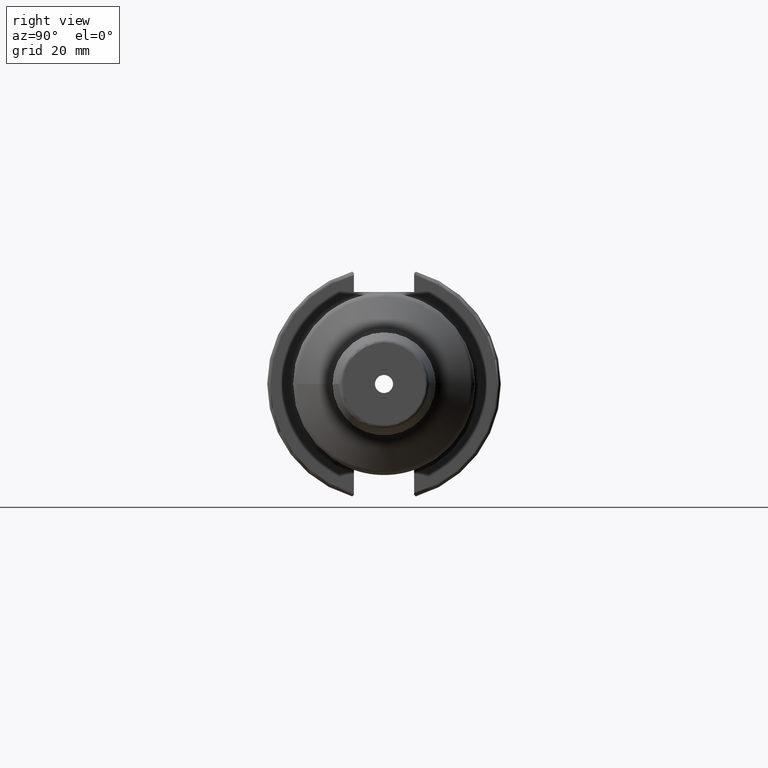
[diagram: clean part render]
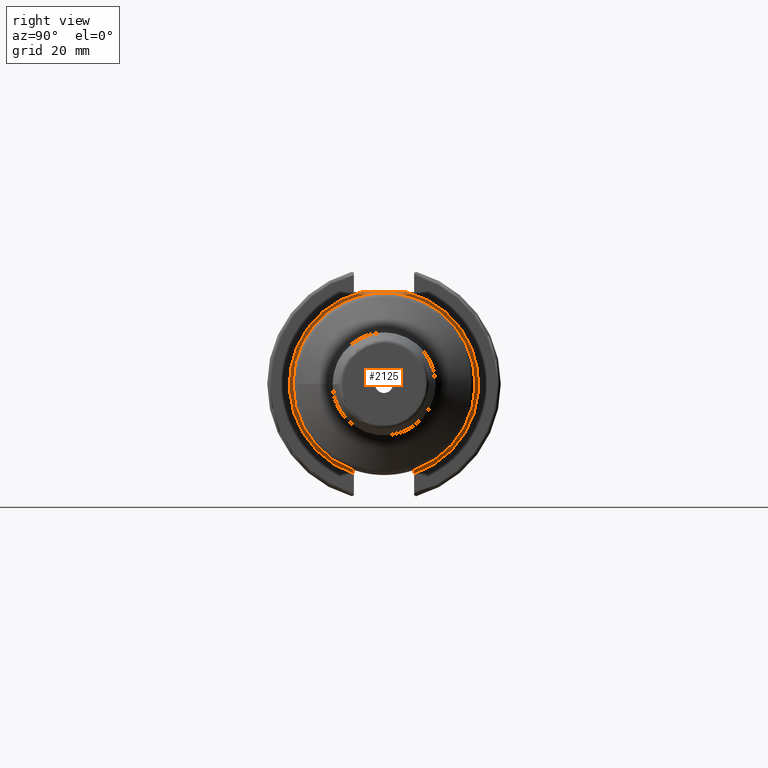
[diagram: same view with one face highlighted and labeled with its STEP entity id]
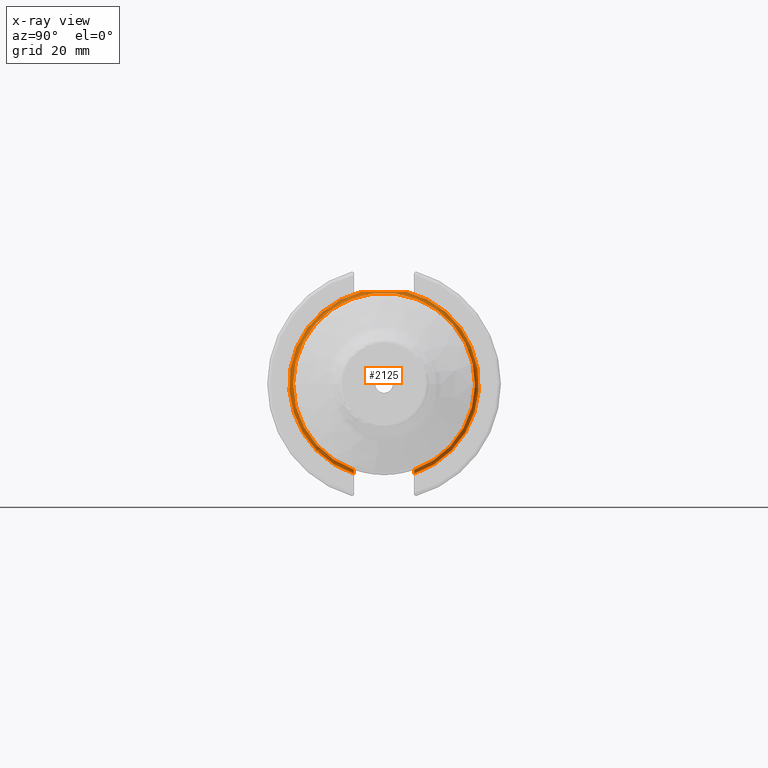
[diagram: x-ray of the same camera — body ghosted, the highlighted face saturated]
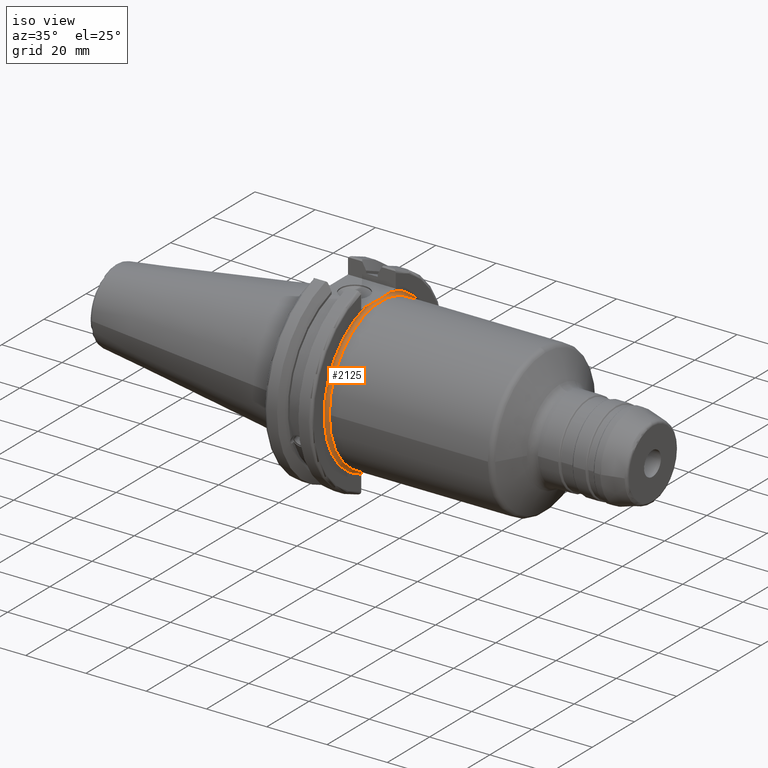
[diagram: same view with one face highlighted and labeled with its STEP entity id]
A machine part, right view. The second image highlights one B-rep face of the part: STEP entity #2125.
The next image is the same camera in x-ray: the body ghosted, the highlighted face saturated — about 4% of this face is hidden behind the body in this view.
A second angle (iso view) of the same face is appended — the face is thin or edge-on in the first view.
In plain terms, the highlighted toroidal blend (fillet) surface has major radius 25.75 mm and minor (blend) radius 1 mm.
Its self-contained STEP definition (entity closure, byte-faithful):
#93=TOROIDAL_SURFACE('',#2337,25.75,1.);
#121=B_SPLINE_CURVE_WITH_KNOTS('',3,(#3531,#3532,#3533,#3534,#3535,#3536,
#3537,#3538,#3539,#3540),.UNSPECIFIED.,.F.,.F.,(4,2,2,2,4),(1.28229186042809,
1.47392183654147,1.862003561099,2.25008528565654,2.44171526176992),
 .UNSPECIFIED.);
#122=B_SPLINE_CURVE_WITH_KNOTS('',3,(#3544,#3545,#3546,#3547,#3548,#3549,
#3550,#3551,#3552,#3553),.UNSPECIFIED.,.F.,.F.,(4,2,2,2,4),(0.152036209068872,
0.19179652975479,0.230554749961229,0.268011696377573,0.304368806480559),
 .UNSPECIFIED.);
#123=B_SPLINE_CURVE_WITH_KNOTS('',3,(#3559,#3560,#3561,#3562,#3563,#3564,
#3565,#3566,#3567,#3568),.UNSPECIFIED.,.F.,.F.,(4,2,2,2,4),(0.304368806480559,
0.340725916583545,0.378182862999889,0.416941083206328,0.456701403892246),
 .UNSPECIFIED.);
#196=FACE_OUTER_BOUND('',#307,.T.);
#307=EDGE_LOOP('',(#1563,#1564,#1565,#1566,#1567,#1568,#1569));
#677=CIRCLE('',#2338,25.75);
#678=CIRCLE('',#2339,24.75);
#679=CIRCLE('',#2340,24.75);
#680=CIRCLE('',#2341,25.75);
#854=VERTEX_POINT('',#3529);
#855=VERTEX_POINT('',#3530);
#856=VERTEX_POINT('',#3541);
#857=VERTEX_POINT('',#3543);
#858=VERTEX_POINT('',#3554);
#859=VERTEX_POINT('',#3556);
#860=VERTEX_POINT('',#3558);
#1125=EDGE_CURVE('',#854,#855,#121,.F.);
#1126=EDGE_CURVE('',#854,#856,#677,.T.);
#1127=EDGE_CURVE('',#856,#857,#122,.T.);
#1128=EDGE_CURVE('',#857,#858,#678,.T.);
#1129=EDGE_CURVE('',#858,#859,#679,.T.);
#1130=EDGE_CURVE('',#859,#860,#123,.T.);
#1131=EDGE_CURVE('',#860,#855,#680,.T.);
#1563=ORIENTED_EDGE('',*,*,#1125,.F.);
#1564=ORIENTED_EDGE('',*,*,#1126,.T.);
#1565=ORIENTED_EDGE('',*,*,#1127,.T.);
#1566=ORIENTED_EDGE('',*,*,#1128,.T.);
#1567=ORIENTED_EDGE('',*,*,#1129,.T.);
#1568=ORIENTED_EDGE('',*,*,#1130,.T.);
#1569=ORIENTED_EDGE('',*,*,#1131,.T.);
#2125=ADVANCED_FACE('',(#196),#93,.F.);
#2337=AXIS2_PLACEMENT_3D('',#3528,#2773,#2774);
#2338=AXIS2_PLACEMENT_3D('',#3542,#2775,#2776);
#2339=AXIS2_PLACEMENT_3D('',#3555,#2777,#2778);
#2340=AXIS2_PLACEMENT_3D('',#3557,#2779,#2780);
#2341=AXIS2_PLACEMENT_3D('',#3569,#2781,#2782);
#2773=DIRECTION('center_axis',(-1.,0.,0.));
#2774=DIRECTION('ref_axis',(0.,0.,1.));
#2775=DIRECTION('center_axis',(1.,0.,0.));
#2776=DIRECTION('ref_axis',(0.,6.12323399573677E-17,1.));
#2777=DIRECTION('center_axis',(-1.,0.,0.));
#2778=DIRECTION('ref_axis',(0.,6.12323399573676E-17,1.));
#2779=DIRECTION('center_axis',(-1.,0.,0.));
#2780=DIRECTION('ref_axis',(0.,6.12323399573676E-17,1.));
#2781=DIRECTION('center_axis',(1.,0.,0.));
#2782=DIRECTION('ref_axis',(0.,6.12323399573677E-17,1.));
#3528=CARTESIAN_POINT('Origin',(20.05,0.,0.));
#3529=CARTESIAN_POINT('',(19.05,-6.16948133962656,25.));
#3530=CARTESIAN_POINT('',(19.05,6.16948133962656,25.));
#3531=CARTESIAN_POINT('Ctrl Pts',(19.05,6.16948133962656,25.));
#3532=CARTESIAN_POINT('Ctrl Pts',(19.05,5.53071475258196,25.));
#3533=CARTESIAN_POINT('Ctrl Pts',(19.0917093675371,4.76533047486058,25.));
#3534=CARTESIAN_POINT('Ctrl Pts',(19.2334466867335,2.83816328553264,25.));
#3535=CARTESIAN_POINT('Ctrl Pts',(19.3885621722339,1.29360574852511,25.));
#3536=CARTESIAN_POINT('Ctrl Pts',(19.3885621722339,-1.29360574852511,25.));
#3537=CARTESIAN_POINT('Ctrl Pts',(19.2334466867335,-2.83816328553264,25.));
#3538=CARTESIAN_POINT('Ctrl Pts',(19.0917093675371,-4.76533047486058,25.));
#3539=CARTESIAN_POINT('Ctrl Pts',(19.05,-5.53071475258196,25.));
#3540=CARTESIAN_POINT('Ctrl Pts',(19.05,-6.16948133962656,25.));
#3541=CARTESIAN_POINT('',(19.05,-8.19,-24.4128326910254));
#3542=CARTESIAN_POINT('Origin',(19.05,0.,0.));
#3543=CARTESIAN_POINT('',(20.05,-8.19,-23.3556502799644));
#3544=CARTESIAN_POINT('Ctrl Pts',(19.05,-8.19,-24.4128326910254));
#3545=CARTESIAN_POINT('Ctrl Pts',(19.05,-8.19,-24.280298288739));
#3546=CARTESIAN_POINT('Ctrl Pts',(19.079885359023,-8.19,-24.124090110551));
#3547=CARTESIAN_POINT('Ctrl Pts',(19.177275426903,-8.19,-23.8811560320461));
#3548=CARTESIAN_POINT('Ctrl Pts',(19.2609009617474,-8.19,-23.7506111583087));
#3549=CARTESIAN_POINT('Ctrl Pts',(19.4373931081247,-8.19,-23.5678758115065));
#3550=CARTESIAN_POINT('Ctrl Pts',(19.5602603745075,-8.19,-23.4821320058467));
#3551=CARTESIAN_POINT('Ctrl Pts',(19.7864204604307,-8.19,-23.3852265342659));
#3552=CARTESIAN_POINT('Ctrl Pts',(19.92880963299,-8.19,-23.3556502799644));
#3553=CARTESIAN_POINT('Ctrl Pts',(20.05,-8.19,-23.3556502799644));
#3554=CARTESIAN_POINT('',(20.05,-24.75,-3.0310008278897E-15));
#3555=CARTESIAN_POINT('Origin',(20.05,0.,0.));
#3556=CARTESIAN_POINT('',(20.05,8.19,-23.3556502799644));
#3557=CARTESIAN_POINT('Origin',(20.05,0.,0.));
#3558=CARTESIAN_POINT('',(19.05,8.19,-24.4128326910254));
#3559=CARTESIAN_POINT('Ctrl Pts',(20.05,8.19,-23.3556502799644));
#3560=CARTESIAN_POINT('Ctrl Pts',(19.92880963299,8.19,-23.3556502799644));
#3561=CARTESIAN_POINT('Ctrl Pts',(19.7864204604307,8.19,-23.3852265342659));
#3562=CARTESIAN_POINT('Ctrl Pts',(19.5602603745075,8.19,-23.4821320058467));
#3563=CARTESIAN_POINT('Ctrl Pts',(19.4373931081247,8.19,-23.5678758115065));
#3564=CARTESIAN_POINT('Ctrl Pts',(19.2609009617474,8.19,-23.7506111583087));
#3565=CARTESIAN_POINT('Ctrl Pts',(19.177275426903,8.19,-23.8811560320461));
#3566=CARTESIAN_POINT('Ctrl Pts',(19.079885359023,8.19,-24.124090110551));
#3567=CARTESIAN_POINT('Ctrl Pts',(19.05,8.19,-24.280298288739));
#3568=CARTESIAN_POINT('Ctrl Pts',(19.05,8.19,-24.4128326910254));
#3569=CARTESIAN_POINT('Origin',(19.05,0.,0.));